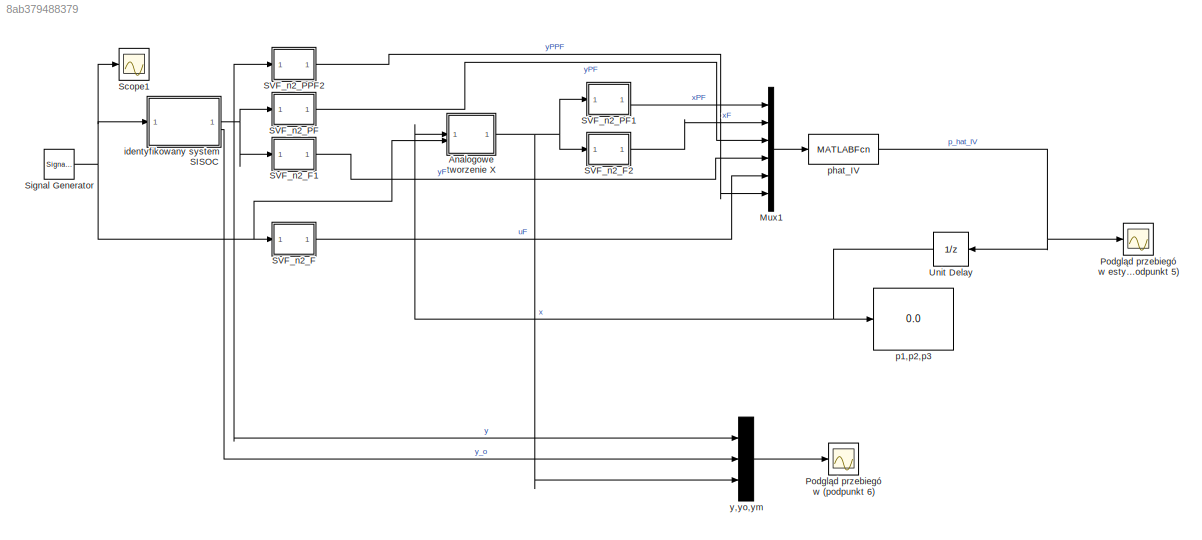
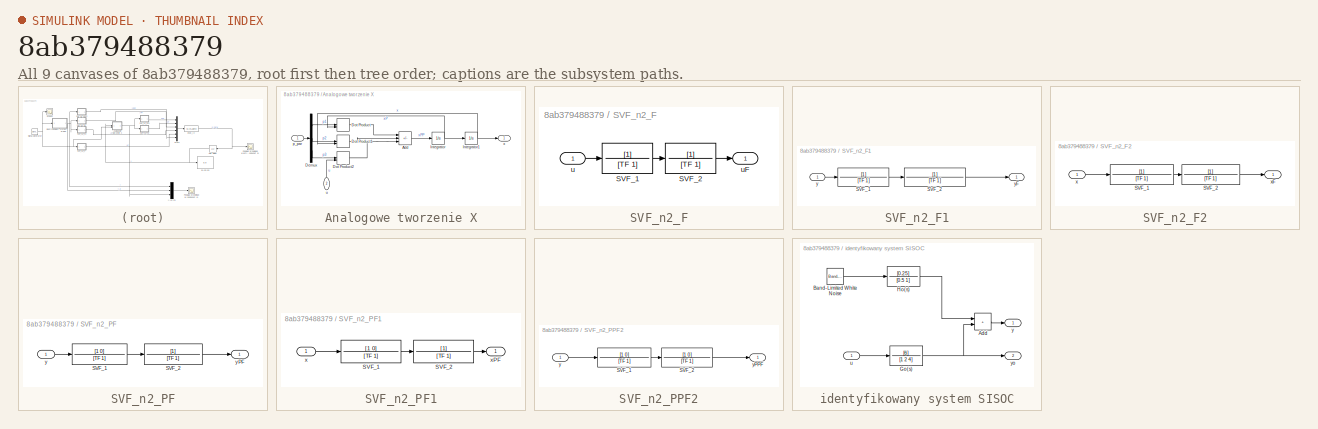
[diagram: thumbnail index - all 9 canvases of the model, root first then tree order]
MODEL slx_8ab379488379
KIND model
CONFIG AbsTol = auto
CONFIG EnableMultiTasking = on
CONFIG FixedStep = Tp
CONFIG InitFcn = Tp = 0.05;\nsigma2e = 0.1;\nTF = 8*Tp;\nN = 20000;\ntend = N*Tp;\nRo = 10;\nglobal phat_RIV_n1 PIV_n1;\nphat_RIV_n1 = zeros(3,1);\nPIV_n1 = Ro*eye(3,3);
CONFIG MaxStep = 0.01
CONFIG MinStep = auto
CONFIG RelTol = 1e-3
CONFIG SampleTimeConstraint = Unconstrained
CONFIG SolverName = ode45
CONFIG StartTime = 0.0
CONFIG StopTime = tend
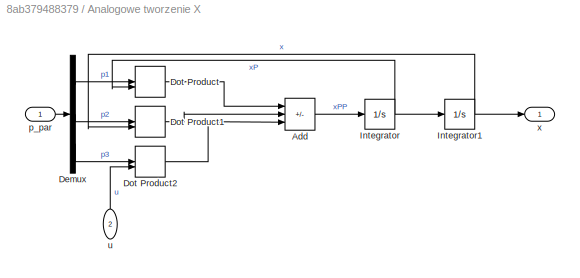
BLOCK [SubSystem] Analogowe tworzenie X
BLOCK [Sum] Analogowe tworzenie X/Add
  IconShape = rectangular
  Inputs = --+
BLOCK [Demux] Analogowe tworzenie X/Demux
  Outputs = 3
BLOCK [DotProduct] Analogowe tworzenie X/Dot Product
  OutDataTypeStr = Inherit: Inherit via internal rule
BLOCK [DotProduct] Analogowe tworzenie X/Dot Product1
  OutDataTypeStr = Inherit: Inherit via internal rule
BLOCK [DotProduct] Analogowe tworzenie X/Dot Product2
  OutDataTypeStr = Inherit: Inherit via internal rule
BLOCK [Integrator] Analogowe tworzenie X/Integrator
BLOCK [Integrator] Analogowe tworzenie X/Integrator1
BLOCK [Inport] Analogowe tworzenie X/p_par
BLOCK [Inport] Analogowe tworzenie X/u
  NameLocation = right
  Port = 2
BLOCK [Outport] Analogowe tworzenie X/x
BLOCK [Mux] Mux1
  DisplayOption = bar
  Inputs = 6
BLOCK [Scope] Podgląd przebiegów (podpunkt 6)
  Floating = off
  NumInputPorts = 1
  ScopeSpecificationString = Simulink.scopes.TimeScopeBlockCfg('CurrentConfiguration', extmgr.ConfigurationSet(extmgr.Configuration('Core','General UI',true),extmgr.Configuration('Core','Source UI',true),extmgr.Configuration('Sources','WiredSimulink',true,'DataLoggingVariableName','ScopeData1'),extmgr.Configuration('Visuals','Time Domain',true,'SerializedDisplays',{struct('MinYLimReal','-2.76205','MaxYLimReal','2.74619','YLab...<+1535ch>
BLOCK [Scope] Podgląd przebiegów estymat (podpunkt 5)
  Floating = off
  NumInputPorts = 1
  ScopeSpecificationString = Simulink.scopes.TimeScopeBlockCfg('CurrentConfiguration', extmgr.ConfigurationSet(extmgr.Configuration('Core','General UI',true),extmgr.Configuration('Core','Source UI',true),extmgr.Configuration('Sources','WiredSimulink',true,'DataLoggingVariableName','ScopeData1'),extmgr.Configuration('Visuals','Time Domain',true,'SerializedDisplays',{struct('MinYLimReal','-4.0717','MaxYLimReal','10.06452','YLab...<+1562ch>
BLOCK [SubSystem] SVF_n2_F
BLOCK [TransferFcn] SVF_n2_F/SVF_1
  Denominator = [TF 1]
BLOCK [TransferFcn] SVF_n2_F/SVF_2
  Denominator = [TF 1]
BLOCK [Inport] SVF_n2_F/u
BLOCK [Outport] SVF_n2_F/uF
BLOCK [SubSystem] SVF_n2_F1
BLOCK [TransferFcn] SVF_n2_F1/SVF_1
  Denominator = [TF 1]
BLOCK [TransferFcn] SVF_n2_F1/SVF_2
  Denominator = [TF 1]
BLOCK [Inport] SVF_n2_F1/y
BLOCK [Outport] SVF_n2_F1/yF
BLOCK [SubSystem] SVF_n2_F2
BLOCK [TransferFcn] SVF_n2_F2/SVF_1
  Denominator = [TF 1]
BLOCK [TransferFcn] SVF_n2_F2/SVF_2
  Denominator = [TF 1]
BLOCK [Inport] SVF_n2_F2/x
BLOCK [Outport] SVF_n2_F2/xF
BLOCK [SubSystem] SVF_n2_PF
BLOCK [TransferFcn] SVF_n2_PF/SVF_1
  Denominator = [TF 1]
  Numerator = [1 0]
BLOCK [TransferFcn] SVF_n2_PF/SVF_2
  Denominator = [TF 1]
BLOCK [Inport] SVF_n2_PF/y
BLOCK [Outport] SVF_n2_PF/yPF
BLOCK [SubSystem] SVF_n2_PF1
BLOCK [TransferFcn] SVF_n2_PF1/SVF_1
  Denominator = [TF 1]
  Numerator = [1 0]
BLOCK [TransferFcn] SVF_n2_PF1/SVF_2
  Denominator = [TF 1]
BLOCK [Inport] SVF_n2_PF1/x
BLOCK [Outport] SVF_n2_PF1/xPF
BLOCK [SubSystem] SVF_n2_PPF2
BLOCK [TransferFcn] SVF_n2_PPF2/SVF_1
  Denominator = [TF 1]
  Numerator = [1 0]
BLOCK [TransferFcn] SVF_n2_PPF2/SVF_2
  Denominator = [TF 1]
  Numerator = [1 0]
BLOCK [Inport] SVF_n2_PPF2/y
BLOCK [Outport] SVF_n2_PPF2/yPPF
BLOCK [Scope] Scope1
  Floating = off
  NumInputPorts = 1
  ScopeSpecificationString = Simulink.scopes.TimeScopeBlockCfg('CurrentConfiguration', extmgr.ConfigurationSet(extmgr.Configuration('Core','General UI',true),extmgr.Configuration('Core','Source UI',true),extmgr.Configuration('Sources','WiredSimulink',true,'DataLoggingVariableName','ScopeData2'),extmgr.Configuration('Visuals','Time Domain',true,'SerializedDisplays',{struct('MinYLimReal','-1.25','MaxYLimReal','1.25','YLabelReal...<+1385ch>
BLOCK [SignalGenerator] Signal Generator
  Frequency = 0.04
  WaveForm = square
BLOCK [UnitDelay] Unit Delay
  HasFrameUpgradeWarning = on
  NameLocation = top
  SampleTime = Tp
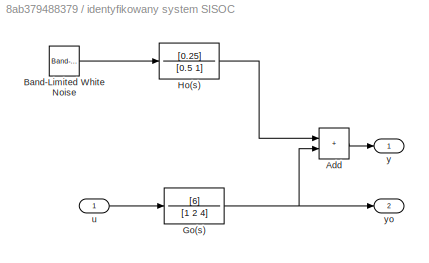
BLOCK [SubSystem] identyfikowany system SISOC
BLOCK [Sum] identyfikowany system SISOC/Add
  IconShape = rectangular
BLOCK [Reference] identyfikowany system SISOC/Band-Limited White Noise  REF=simulink/Sources/Band-Limited
White Noise
  SourceBlock = simulink/Sources/Band-Limited\nWhite Noise
  SourceType = Band-Limited White Noise.
BLOCK [TransferFcn] identyfikowany system SISOC/Go(s)
  Denominator = [1 2 4]
  Numerator = [6]
BLOCK [TransferFcn] identyfikowany system SISOC/Ho(s)
  Denominator = [0.5 1]
  Numerator = [0.25]
BLOCK [Inport] identyfikowany system SISOC/u
BLOCK [Outport] identyfikowany system SISOC/y
BLOCK [Outport] identyfikowany system SISOC/yo
  Port = 2
BLOCK [Display] p1,p2,p3
  Decimation = 1
BLOCK [MATLABFcn] phat_IV
  MATLABFcn = PIV
  OutputDimensions = 3
  OutputSignalType = real
BLOCK [Mux] y,yo,ym
  DisplayOption = bar
  Inputs = 3
LINE Analogowe tworzenie X/Add:1 -> Analogowe tworzenie X/Integrator:1
LINE Analogowe tworzenie X/Demux:1 -> Analogowe tworzenie X/Dot Product:1
LINE Analogowe tworzenie X/Demux:2 -> Analogowe tworzenie X/Dot Product1:1
LINE Analogowe tworzenie X/Demux:3 -> Analogowe tworzenie X/Dot Product2:1
LINE Analogowe tworzenie X/Dot Product1:1 -> Analogowe tworzenie X/Add:2
LINE Analogowe tworzenie X/Dot Product2:1 -> Analogowe tworzenie X/Add:3
LINE Analogowe tworzenie X/Dot Product:1 -> Analogowe tworzenie X/Add:1
NET Analogowe tworzenie X/Integrator1:1 -> Analogowe tworzenie X/Dot Product1:2, Analogowe tworzenie X/x:1
NET Analogowe tworzenie X/Integrator:1 -> Analogowe tworzenie X/Dot Product:2, Analogowe tworzenie X/Integrator1:1
LINE Analogowe tworzenie X/p_par:1 -> Analogowe tworzenie X/Demux:1
LINE Analogowe tworzenie X/u:1 -> Analogowe tworzenie X/Dot Product2:2
NET Analogowe tworzenie X:1 -> SVF_n2_F2:1, SVF_n2_PF1:1, y,yo,ym:3
LINE Mux1:1 -> phat_IV:1
LINE SVF_n2_F/SVF_1:1 -> SVF_n2_F/SVF_2:1
LINE SVF_n2_F/SVF_2:1 -> SVF_n2_F/uF:1
LINE SVF_n2_F/u:1 -> SVF_n2_F/SVF_1:1
LINE SVF_n2_F1/SVF_1:1 -> SVF_n2_F1/SVF_2:1
LINE SVF_n2_F1/SVF_2:1 -> SVF_n2_F1/yF:1
LINE SVF_n2_F1/y:1 -> SVF_n2_F1/SVF_1:1
LINE SVF_n2_F1:1 -> Mux1:4
LINE SVF_n2_F2/SVF_1:1 -> SVF_n2_F2/SVF_2:1
LINE SVF_n2_F2/SVF_2:1 -> SVF_n2_F2/xF:1
LINE SVF_n2_F2/x:1 -> SVF_n2_F2/SVF_1:1
LINE SVF_n2_F2:1 -> Mux1:2
LINE SVF_n2_F:1 -> Mux1:5
LINE SVF_n2_PF/SVF_1:1 -> SVF_n2_PF/SVF_2:1
LINE SVF_n2_PF/SVF_2:1 -> SVF_n2_PF/yPF:1
LINE SVF_n2_PF/y:1 -> SVF_n2_PF/SVF_1:1
LINE SVF_n2_PF1/SVF_1:1 -> SVF_n2_PF1/SVF_2:1
LINE SVF_n2_PF1/SVF_2:1 -> SVF_n2_PF1/xPF:1
LINE SVF_n2_PF1/x:1 -> SVF_n2_PF1/SVF_1:1
LINE SVF_n2_PF1:1 -> Mux1:1
LINE SVF_n2_PF:1 -> Mux1:3
LINE SVF_n2_PPF2/SVF_1:1 -> SVF_n2_PPF2/SVF_2:1
LINE SVF_n2_PPF2/SVF_2:1 -> SVF_n2_PPF2/yPPF:1
LINE SVF_n2_PPF2/y:1 -> SVF_n2_PPF2/SVF_1:1
LINE SVF_n2_PPF2:1 -> Mux1:6
NET Signal Generator:1 -> Analogowe tworzenie X:2, SVF_n2_F:1, Scope1:1, identyfikowany system SISOC:1
NET Unit Delay:1 -> Analogowe tworzenie X:1, p1,p2,p3:1
LINE identyfikowany system SISOC/Add:1 -> identyfikowany system SISOC/y:1
LINE identyfikowany system SISOC/Band-Limited White Noise:1 -> identyfikowany system SISOC/Ho(s):1
NET identyfikowany system SISOC/Go(s):1 -> identyfikowany system SISOC/Add:2, identyfikowany system SISOC/yo:1
LINE identyfikowany system SISOC/Ho(s):1 -> identyfikowany system SISOC/Add:1
LINE identyfikowany system SISOC/u:1 -> identyfikowany system SISOC/Go(s):1
NET identyfikowany system SISOC:1 -> SVF_n2_F1:1, SVF_n2_PF:1, SVF_n2_PPF2:1, y,yo,ym:1
LINE identyfikowany system SISOC:2 -> y,yo,ym:2
NET phat_IV:1 -> Podgląd przebiegów estymat (podpunkt 5):1, Unit Delay:1
LINE y,yo,ym:1 -> Podgląd przebiegów (podpunkt 6):1
note: NET lines group one-source signal fan-out (src -> all destinations, sorted); 1:1 wires keep LINE
